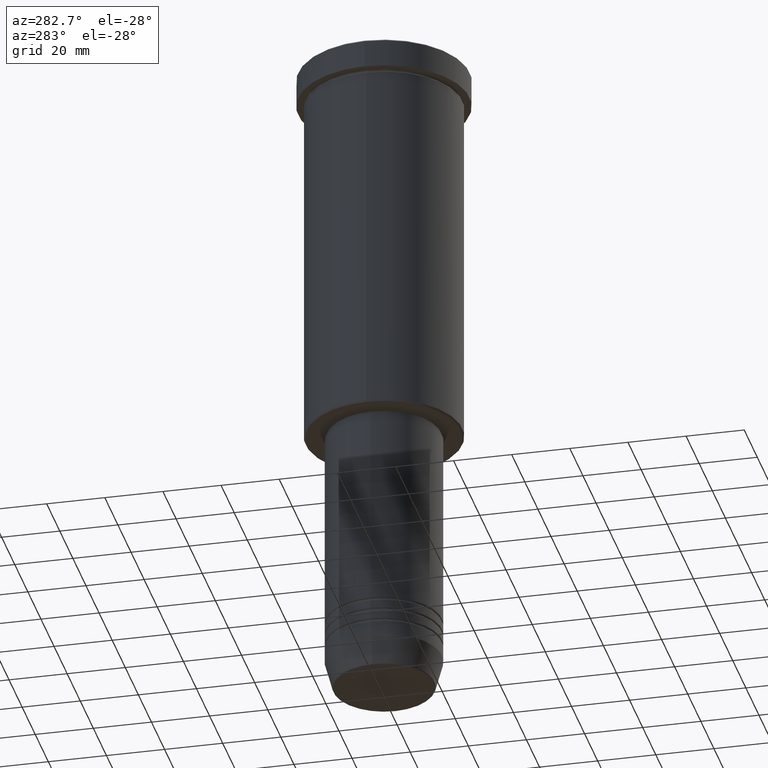
[diagram: clean part render]
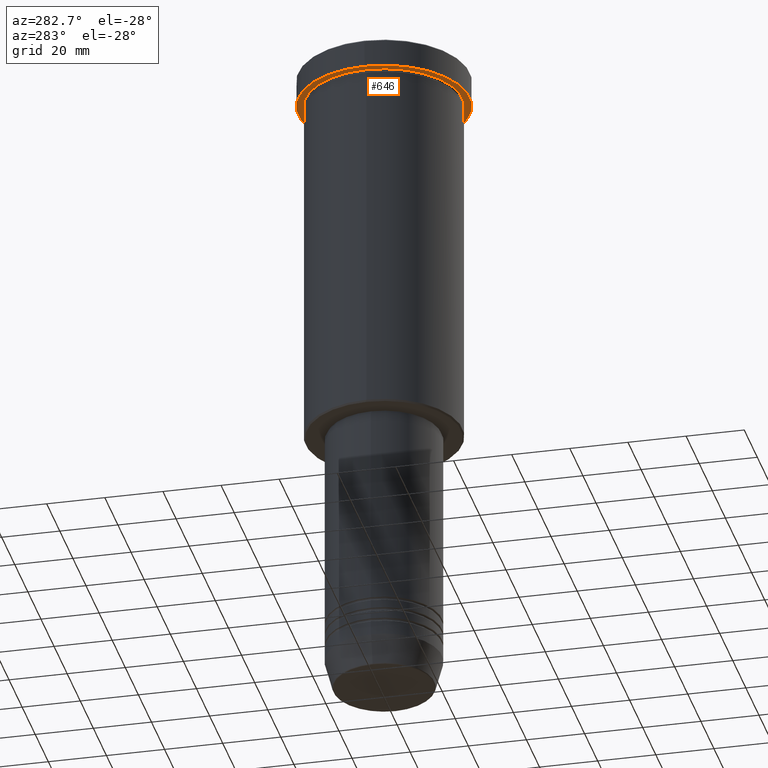
[diagram: same view with one face highlighted and labeled with its STEP entity id]
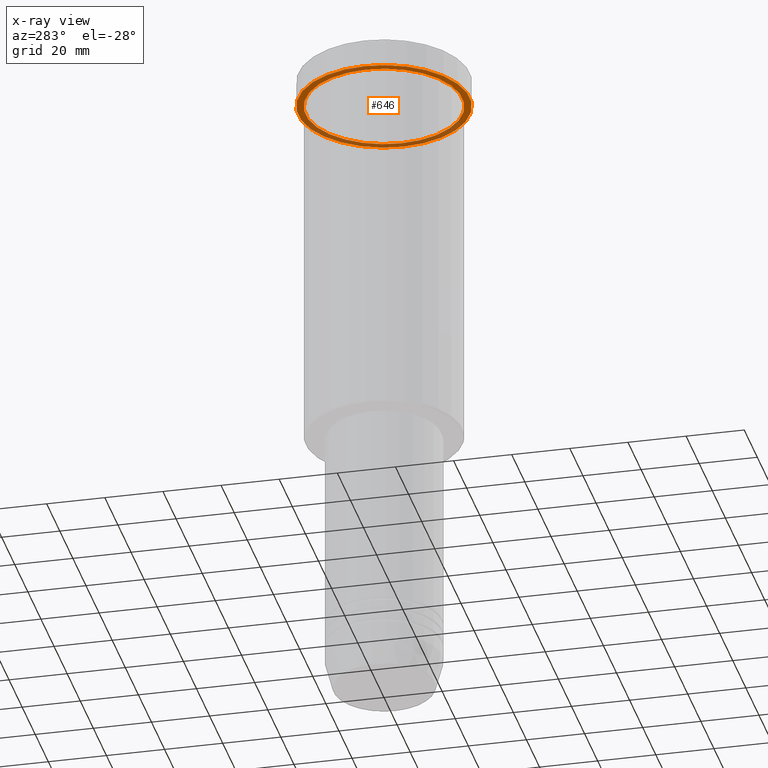
[diagram: x-ray of the same camera — body ghosted, the highlighted face saturated]
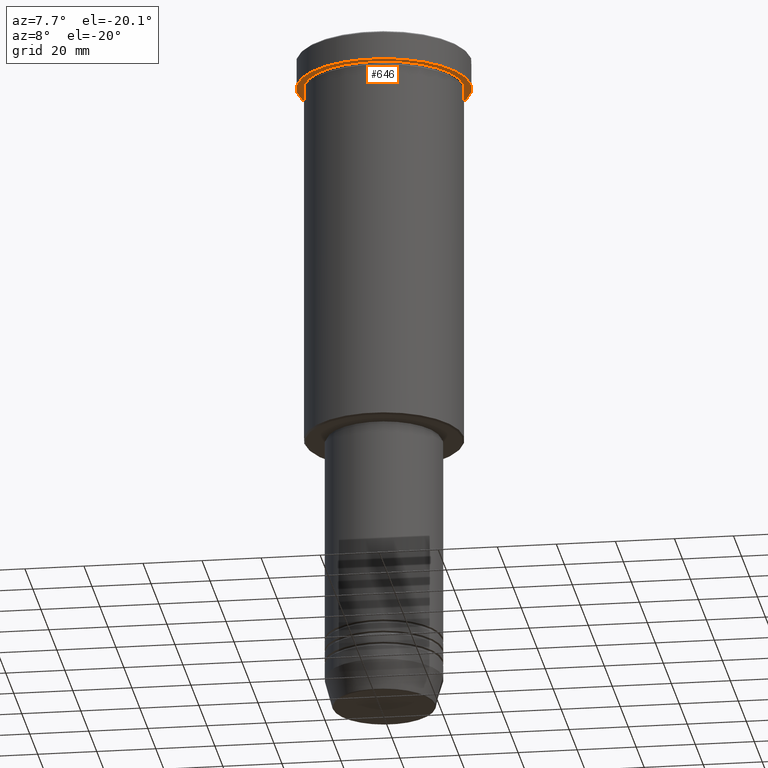
[diagram: same view with one face highlighted and labeled with its STEP entity id]
A machine part, auxiliary view. The second image highlights one B-rep face of the part: STEP entity #646.
The next image is the same camera in x-ray: the body ghosted, the highlighted face saturated — about 36% of this face is hidden behind the body in this view.
A second angle (auxiliary view) of the same face is appended — the face is thin or edge-on in the first view.
In plain terms, the highlighted planar face has unit normal (0, 0, -1).
Its self-contained STEP definition (entity closure, byte-faithful):
#12 = CARTESIAN_POINT ( 'NONE',  ( 27.00000000000000355, 3.306546357697854128E-15, -9.999999999999992895 ) ) ;
#55 = CARTESIAN_POINT ( 'NONE',  ( 0.000000000000000000, 29.50000000000000000, -9.999999999999992895 ) ) ;
#96 = CARTESIAN_POINT ( 'NONE',  ( 0.000000000000000000, 0.000000000000000000, -9.999999999999992895 ) ) ;
#97 = ORIENTED_EDGE ( 'NONE', *, *, #750, .F. ) ;
#102 = DIRECTION ( 'NONE',  ( -1.000000000000000000, 0.000000000000000000, 0.000000000000000000 ) ) ;
#119 = EDGE_LOOP ( 'NONE', ( #269, #97 ) ) ;
#141 = AXIS2_PLACEMENT_3D ( 'NONE', #556, #265, #102 ) ;
#154 = DIRECTION ( 'NONE',  ( -0.000000000000000000, -0.000000000000000000, 1.000000000000000000 ) ) ;
#160 = AXIS2_PLACEMENT_3D ( 'NONE', #289, #1019, #934 ) ;
#169 = VERTEX_POINT ( 'NONE', #235 ) ;
#178 = CIRCLE ( 'NONE', #141, 27.00000000000000355 ) ;
#199 = CIRCLE ( 'NONE', #780, 27.00000000000000355 ) ;
#232 = EDGE_CURVE ( 'NONE', #169, #887, #199, .T. ) ;
#235 = CARTESIAN_POINT ( 'NONE',  ( -27.00000000000000355, 0.000000000000000000, -9.999999999999992895 ) ) ;
#265 = DIRECTION ( 'NONE',  ( -0.000000000000000000, -0.000000000000000000, 1.000000000000000000 ) ) ;
#269 = ORIENTED_EDGE ( 'NONE', *, *, #372, .F. ) ;
#289 = CARTESIAN_POINT ( 'NONE',  ( 0.000000000000000000, 0.000000000000000000, -9.999999999999992895 ) ) ;
#302 = EDGE_LOOP ( 'NONE', ( #863, #820 ) ) ;
#335 = EDGE_CURVE ( 'NONE', #887, #169, #178, .T. ) ;
#372 = EDGE_CURVE ( 'NONE', #583, #860, #579, .T. ) ;
#425 = DIRECTION ( 'NONE',  ( 0.000000000000000000, 0.000000000000000000, -1.000000000000000000 ) ) ;
#431 = FACE_BOUND ( 'NONE', #302, .T. ) ;
#445 = DIRECTION ( 'NONE',  ( -0.000000000000000000, -0.000000000000000000, 1.000000000000000000 ) ) ;
#450 = AXIS2_PLACEMENT_3D ( 'NONE', #55, #425, #1155 ) ;
#485 = AXIS2_PLACEMENT_3D ( 'NONE', #96, #445, #1169 ) ;
#517 = CARTESIAN_POINT ( 'NONE',  ( 29.50000000000000000, 0.000000000000000000, -9.999999999999992895 ) ) ;
#531 = FACE_OUTER_BOUND ( 'NONE', #119, .T. ) ;
#556 = CARTESIAN_POINT ( 'NONE',  ( 0.000000000000000000, 0.000000000000000000, -9.999999999999992895 ) ) ;
#579 = CIRCLE ( 'NONE', #160, 29.50000000000000000 ) ;
#583 = VERTEX_POINT ( 'NONE', #517 ) ;
#646 = ADVANCED_FACE ( 'NONE', ( #431, #531 ), #786, .T. ) ;
#750 = EDGE_CURVE ( 'NONE', #860, #583, #1156, .T. ) ;
#780 = AXIS2_PLACEMENT_3D ( 'NONE', #1066, #154, #882 ) ;
#786 = PLANE ( 'NONE',  #450 ) ;
#820 = ORIENTED_EDGE ( 'NONE', *, *, #335, .T. ) ;
#860 = VERTEX_POINT ( 'NONE', #1031 ) ;
#863 = ORIENTED_EDGE ( 'NONE', *, *, #232, .T. ) ;
#882 = DIRECTION ( 'NONE',  ( -1.000000000000000000, 0.000000000000000000, 0.000000000000000000 ) ) ;
#887 = VERTEX_POINT ( 'NONE', #12 ) ;
#934 = DIRECTION ( 'NONE',  ( 1.000000000000000000, 0.000000000000000000, 0.000000000000000000 ) ) ;
#1019 = DIRECTION ( 'NONE',  ( -0.000000000000000000, -0.000000000000000000, 1.000000000000000000 ) ) ;
#1031 = CARTESIAN_POINT ( 'NONE',  ( -29.50000000000000000, 3.612708057484691604E-15, -9.999999999999992895 ) ) ;
#1066 = CARTESIAN_POINT ( 'NONE',  ( 0.000000000000000000, 0.000000000000000000, -9.999999999999992895 ) ) ;
#1155 = DIRECTION ( 'NONE',  ( -1.000000000000000000, 0.000000000000000000, -0.000000000000000000 ) ) ;
#1156 = CIRCLE ( 'NONE', #485, 29.50000000000000000 ) ;
#1169 = DIRECTION ( 'NONE',  ( 1.000000000000000000, 0.000000000000000000, 0.000000000000000000 ) ) ;